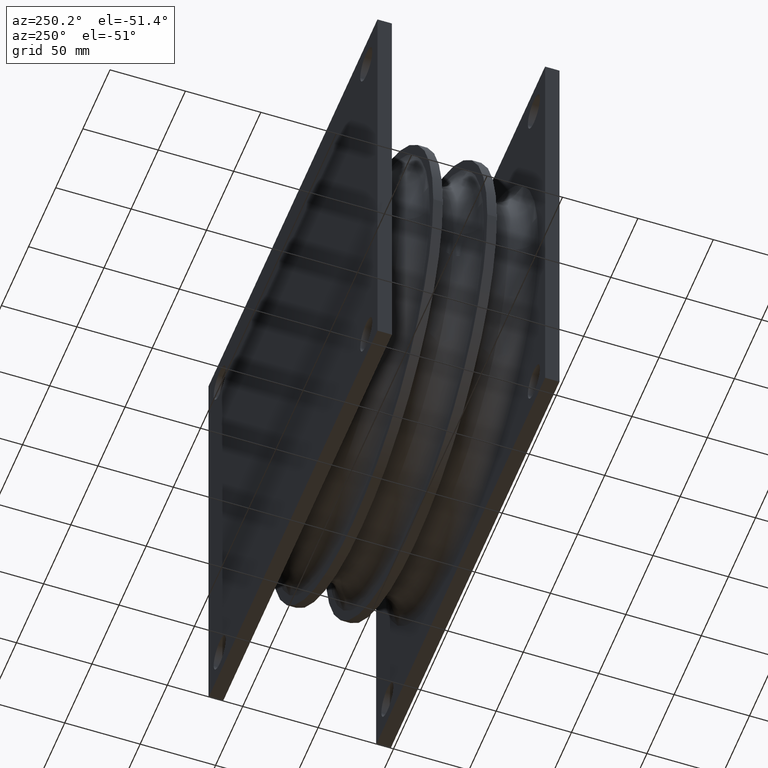
[diagram: clean part render]
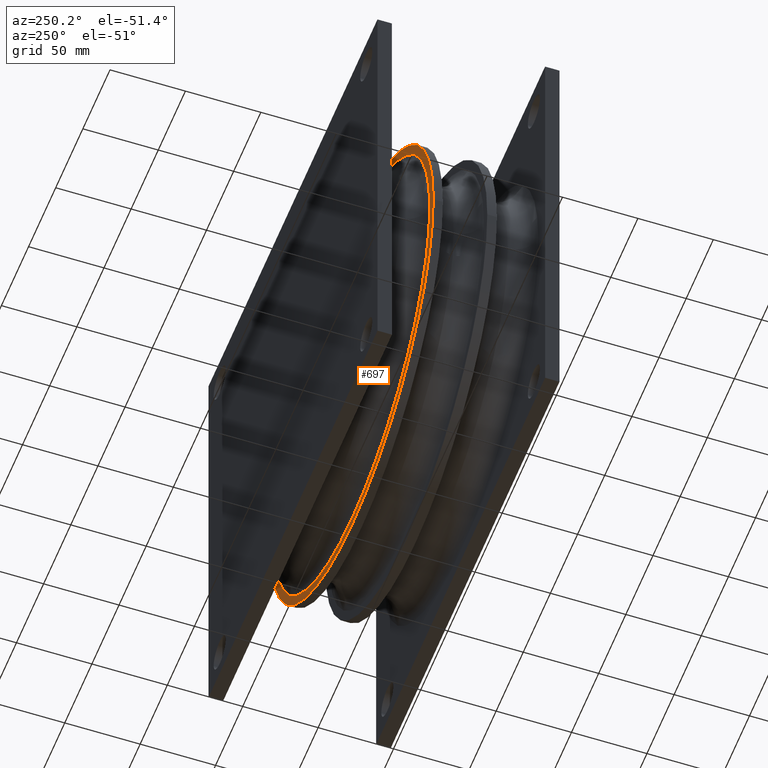
[diagram: same view with one face highlighted and labeled with its STEP entity id]
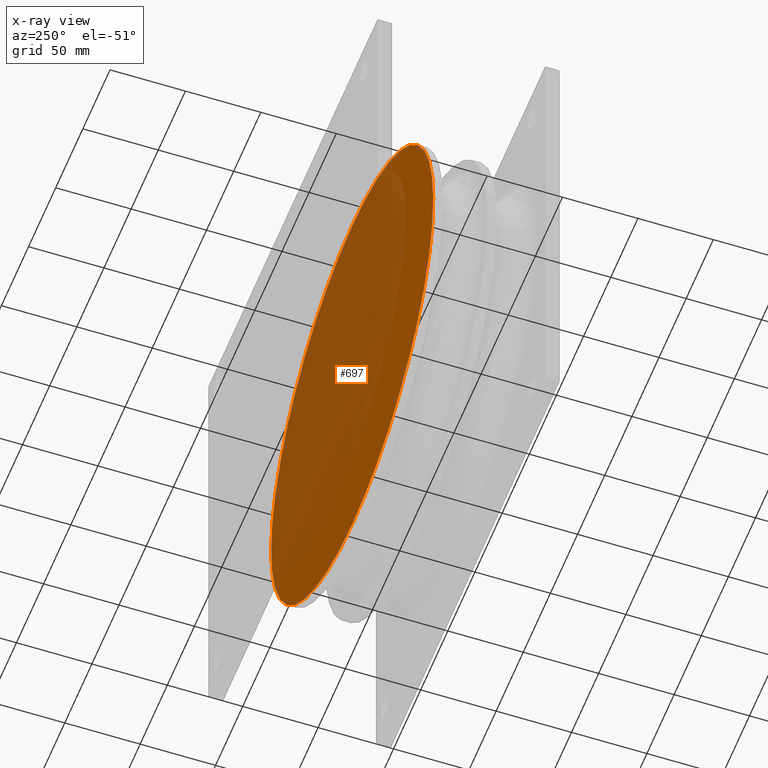
[diagram: x-ray of the same camera — body ghosted, the highlighted face saturated]
A machine part, auxiliary view. The second image highlights one B-rep face of the part: STEP entity #697.
The next image is the same camera in x-ray: the body ghosted, the highlighted face saturated — about 66% of this face is hidden behind the body in this view.
In plain terms, the highlighted planar face has unit normal (-0, -1, 0).
Its self-contained STEP definition (entity closure, byte-faithful):
#39 = DIRECTION ( 'NONE',  ( 1.010333609296569200E-017, 1.000000000000000000, -0.0000000000000000000 ) ) ;
#152 = CARTESIAN_POINT ( 'NONE',  ( -5.220303323867506100E-033, 3.205000000000000500, 0.0000000000000000000 ) ) ;
#245 = CARTESIAN_POINT ( 'NONE',  ( -1.182090322876985200E-017, 3.205000000000000500, 0.0000000000000000000 ) ) ;
#479 = ORIENTED_EDGE ( 'NONE', *, *, #772, .T. ) ;
#529 = CARTESIAN_POINT ( 'NONE',  ( -1.182090322876985200E-017, 3.205000000000000500, 0.0000000000000000000 ) ) ;
#638 = DIRECTION ( 'NONE',  ( -1.010333609296569200E-017, -1.000000000000000000, 0.0000000000000000000 ) ) ;
#650 = DIRECTION ( 'NONE',  ( 1.000000000000000000, -1.010333609296569200E-017, 0.0000000000000000000 ) ) ;
#695 = CIRCLE ( 'NONE', #1219, 5.875000000000000000 ) ;
#697 = ADVANCED_FACE ( 'NONE', ( #1190 ), #868, .F. ) ;
#734 = VERTEX_POINT ( 'NONE', #778 ) ;
#751 = DIRECTION ( 'NONE',  ( 1.010333609296569200E-017, 1.000000000000000000, -0.0000000000000000000 ) ) ;
#772 = EDGE_CURVE ( 'NONE', #734, #1279, #1048, .T. ) ;
#778 = CARTESIAN_POINT ( 'NONE',  ( 5.875000000000000000, 3.205000000000000500, 7.194799944990700800E-016 ) ) ;
#790 = DIRECTION ( 'NONE',  ( -1.000000000000000000, 0.0000000000000000000, 0.0000000000000000000 ) ) ;
#868 = PLANE ( 'NONE',  #1529 ) ;
#897 = ORIENTED_EDGE ( 'NONE', *, *, #1578, .T. ) ;
#1048 = CIRCLE ( 'NONE', #1398, 5.875000000000000000 ) ;
#1096 = DIRECTION ( 'NONE',  ( -1.000000000000000000, 0.0000000000000000000, 0.0000000000000000000 ) ) ;
#1190 = FACE_OUTER_BOUND ( 'NONE', #1208, .T. ) ;
#1208 = EDGE_LOOP ( 'NONE', ( #897, #479 ) ) ;
#1219 = AXIS2_PLACEMENT_3D ( 'NONE', #245, #751, #1096 ) ;
#1279 = VERTEX_POINT ( 'NONE', #1478 ) ;
#1398 = AXIS2_PLACEMENT_3D ( 'NONE', #529, #39, #790 ) ;
#1478 = CARTESIAN_POINT ( 'NONE',  ( -5.875000000000000000, 3.205000000000000500, 0.0000000000000000000 ) ) ;
#1529 = AXIS2_PLACEMENT_3D ( 'NONE', #152, #638, #650 ) ;
#1578 = EDGE_CURVE ( 'NONE', #1279, #734, #695, .T. ) ;